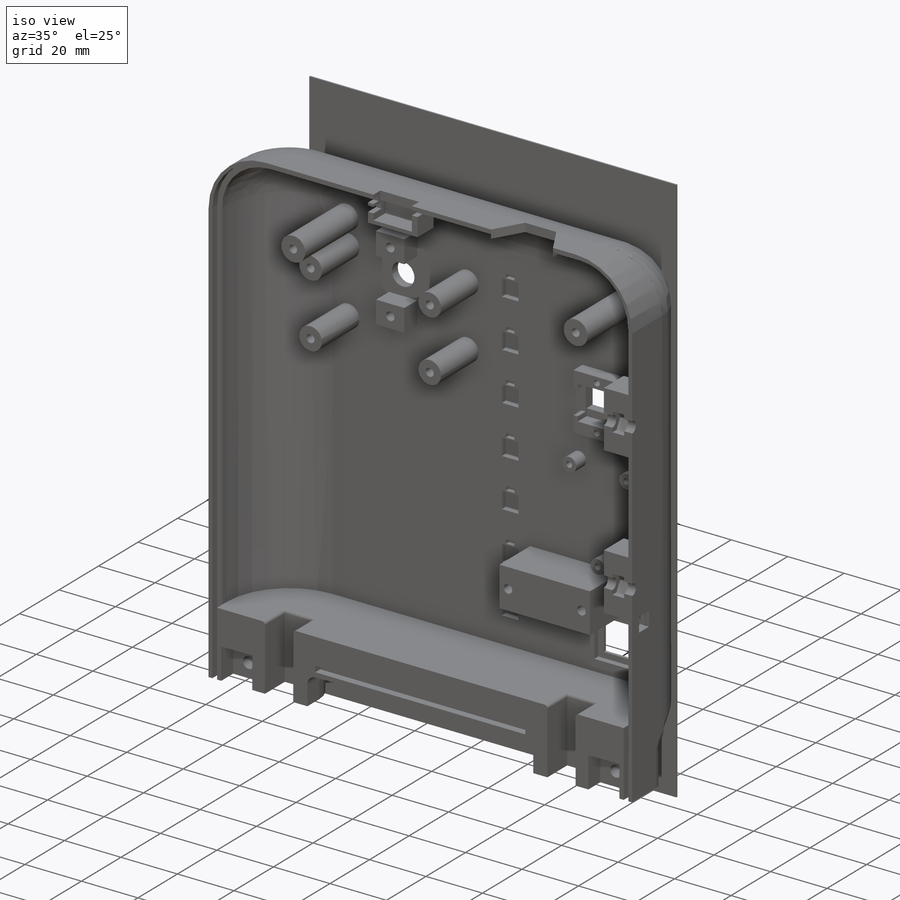
[diagram: iso view]
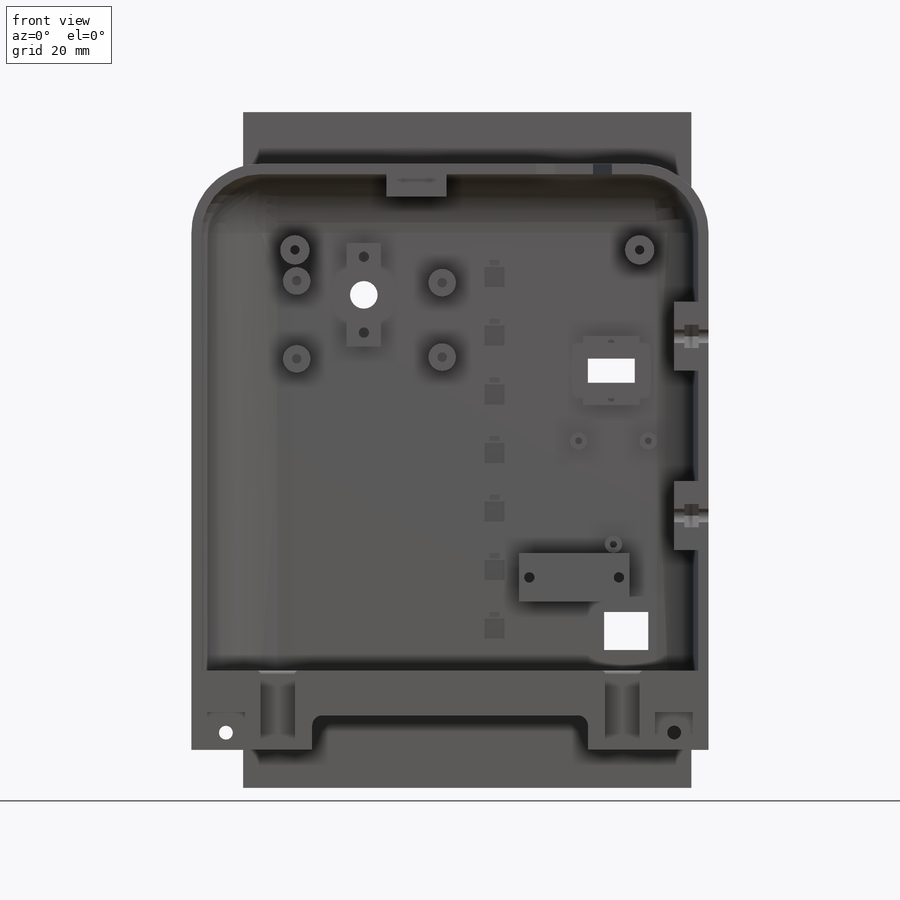
[diagram: front view]
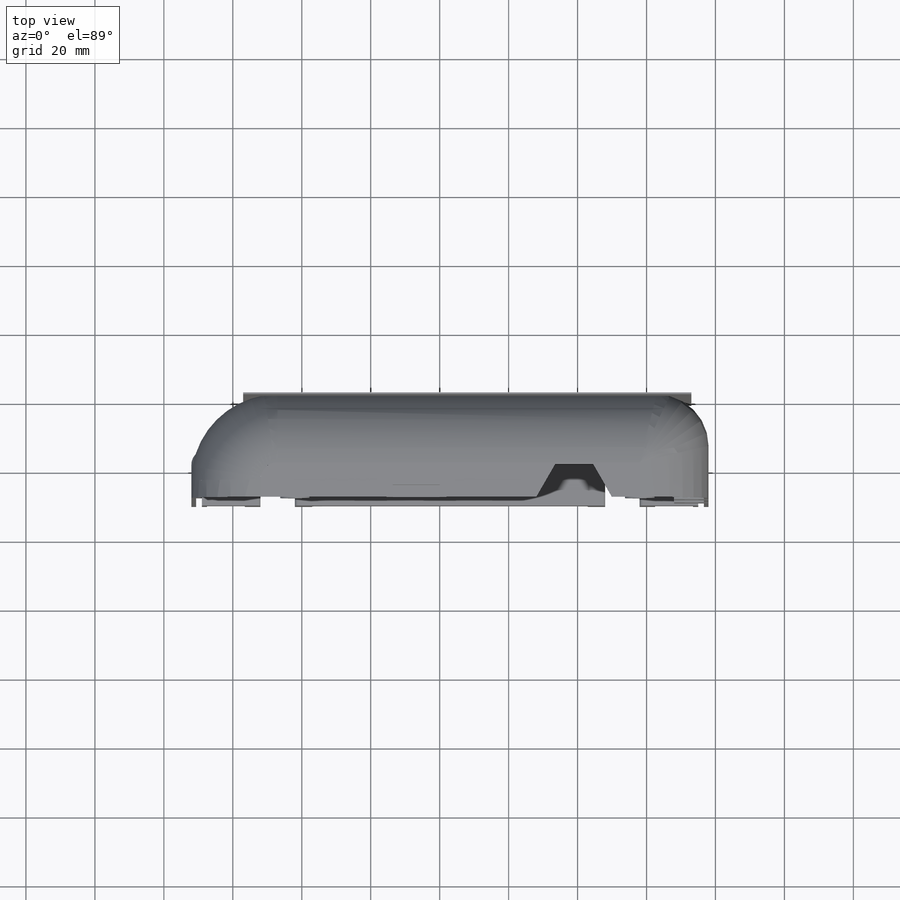
[diagram: top view]
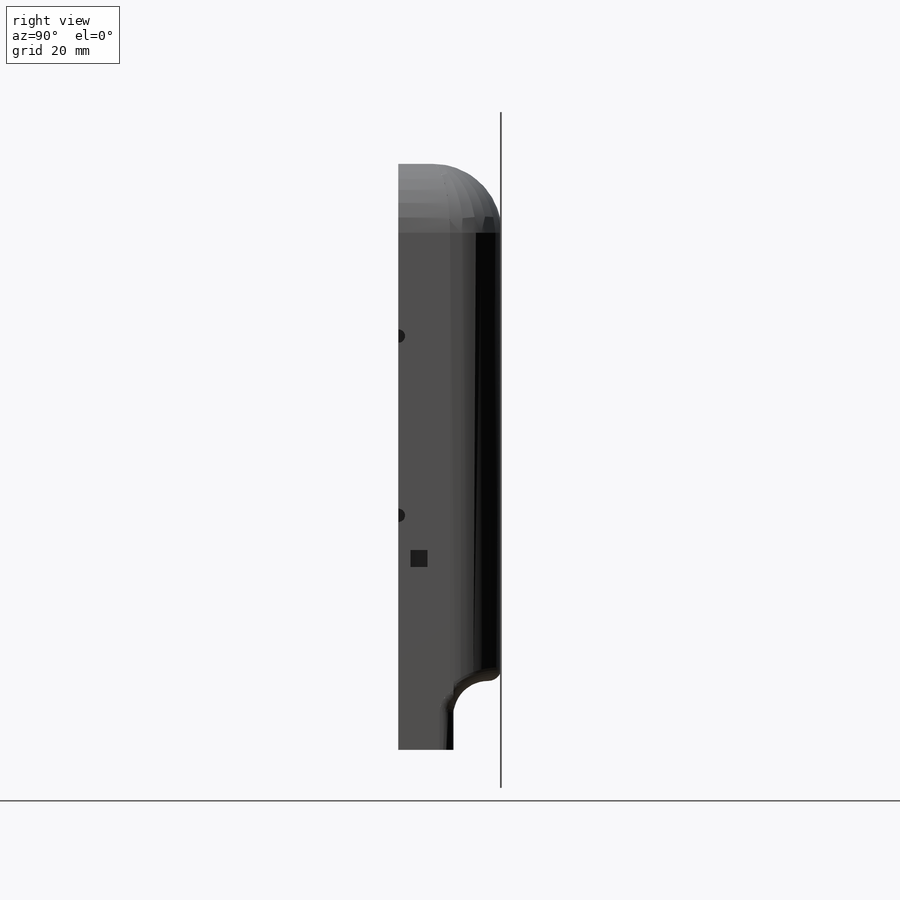
[diagram: right view]
SOLIDWORKS PART (.sldprt)
format: sldprt  version: not decoded by parser v0  size: 1,699,840 bytes
history: native  units: mm
features: sketch x55, cut_extrude x40, extrude x14, shell x13, plane x3, pattern_linear x3, material x1, fillet x1 (+9 scaffold rows collapsed)
feature tree (139):
  scaffold x9  (default folders/planes/origin — collapsed)
  material  "Material <nicht festgelegt>"
  plane  "Ebene vorne"
  plane  "Ebene oben"
  plane  "Ebene rechts"
  sketch  "Skizze1"  dims[D1=25.0mm D4=15.0mm D2=150.0mm D3=30.0mm D5=15.0mm]
  extrude  "Aufsatz-Linear austragen1"  Depth=150mm
  fillet  "Verrundung1"  Radius=20mm
  shell  "Wandung1"  Thickness=3mm
  sketch  "Skizze3"  dims[c1.D1=0.0mm c1.D2=10.0mm c1.D3=20.0mm c1.D4=62.0mm c1.D5=45.0mm c2.D4=20.0mm]
  extrude  "Aufsatz-Linear austragen2"  Depth=7mm
  sketch  "Skizze4"  dims[c1.D1=6.85mm c1.D2=4.0mm c2.D1=7.8mm c2.D3=6.575mm]
  cut_extrude  "Schnitt-Linear austragen1"  Depth=4.15mm
  sketch  "Skizze6"  dims[c1.D3=3.9mm c1.D1=0.0mm c1.D2=3.425mm c2.D3=~5.932274mm]
  cut_extrude  "Schnitt-Linear austragen2"  Depth=8mm
  sketch  "Skizze8"  dims[c1.D1=14.0mm c1.D2=14.0mm c2.D1=14.0mm c2.D2=32.0mm c2.D3=3.0mm c2.D4=20.0mm]
  extrude  "Aufsatz-Linear austragen3"  Depth=15.5mm
  sketch  "Skizze9"  dims[D3=3.0mm D1=7.0mm D2=3.0mm]
  cut_extrude  "Schnitt-Linear austragen4"  Depth=15mm
  sketch  "Skizze10"  dims[D3=3.0mm D1=7.0mm D2=3.0mm]
  cut_extrude  "Schnitt-Linear austragen5"  Depth=15mm
  sketch  "Skizze11"  dims[D1=20.0mm D2=16.5mm D3=5.0mm D4=30.0mm]
  extrude  "Aufsatz-Linear austragen4"  Depth=4.5mm
  sketch  "Skizze12"  dims[c1.D1=11.0mm c1.D2=11.0mm c2.D1=12.1mm c2.D2=13.6mm c2.D3=1.5mm c2.D4=3.95mm]
  cut_extrude  "Schnitt-Linear austragen6"  Depth=4.5mm
  sketch  "Skizze13"  dims[D1=8.8mm D2=5.6mm]
  cut_extrude  "Schnitt-Linear austragen7"  Depth=4mm
  sketch  "Skizze14"  dims[c1.D1=13.6mm c1.D2=0.0mm c1.D3=7.0mm c1.D4=2.55mm c1.D5=7.0mm c2.D3=7.0mm c2.D5=2.55mm]
  cut_extrude  "Schnitt-Linear austragen8"  [1 undecoded]
  sketch  "Skizze15"  dims[D3=2.0mm D1=1.975mm D2=8.25mm]
  cut_extrude  "Schnitt-Linear austragen9"  Depth=5mm
  sketch  "Skizze16"  dims[D3=2.0mm D1=1.975mm D2=8.25mm]
  cut_extrude  "Schnitt-Linear austragen10"  Depth=5mm
  sketch  "Skizze17"  dims[c1.D3=8.0mm c1.D1=50.0mm c1.D2=35.0mm c2.D1=50.0mm]
  cut_extrude  "Schnitt-Linear austragen11"  [1 undecoded]
  sketch  "Skizze18"  dims[c1.D1=8.0mm c1.D2=10.0mm c1.D3=45.0mm c1.D4=20.0mm c1.D5=8.0mm c1.D6=10.0mm c1.D7=42.0mm c1.D8=45.0mm c2.D3=45.0mm]
  extrude  "Aufsatz-Linear austragen5"  Depth=6.5mm
  sketch  "Skizze19"  dims[c1.D1=~2.619136mm c1.D3=~1.28437mm c1.D5=3.0mm c2.D1=4.0mm c2.D2=5.0mm c2.D3=5.0mm c2.D4=4.0mm]
  cut_extrude  "Schnitt-Linear austragen12"  Depth=7mm
  sketch  "Skizze20"  dims[D1=3.5mm D2=13.6mm]
  cut_extrude  "Schnitt-Linear austragen14"  Depth=3mm
  sketch  "Skizze21"  dims[D1=8.0mm D2=17.5mm D3=2.0mm]
  extrude  "Aufsatz-Linear austragen6"  Depth=6.5mm
  sketch  "Skizze22"  dims[D1=5.2mm D2=13.6mm]
  cut_extrude  "Schnitt-Linear austragen15"  Depth=6.05mm
  sketch  "Skizze23"  dims[D1=4.0mm D2=2.0mm]
  cut_extrude  "Schnitt-Linear austragen16"  Depth=4.05mm
  sketch  "Skizze27"  dims[D1=19.0mm D2=0.0mm]
  cut_extrude  "Schnitt-Linear austragen18"  Depth=3mm
  sketch  "Skizze28"  dims[D1=16.0mm D2=35.0mm]
  extrude  "Aufsatz-Linear austragen8"  Depth=20mm
  sketch  "Skizze29"  dims[D1=16.0mm D2=35.0mm]
  extrude  "Aufsatz-Linear austragen9"  Depth=20mm
  sketch  "Skizze30"
  extrude  "Aufsatz-Linear austragen10"  Depth=10mm
  shell  "Verrundung5"  Thickness=10mm
  shell  "Verrundung6"  Thickness=4mm
  shell  "Verrundung9"  Thickness=10mm
  shell  "Verrundung10"  Thickness=3mm
  shell  "Verrundung11"  Thickness=3mm
  shell  "Verrundung12"  Thickness=3mm
  shell  "Verrundung15"  Thickness=4mm
  shell  "Verrundung16"  Thickness=10mm
  shell  "Verrundung18"  Thickness=2mm
  shell  "Verrundung20"  Thickness=4mm
  sketch  "Skizze31"  dims[D1=6.0mm D2=4.5mm D3=11.0mm]
  cut_extrude  "Schnitt-Linear austragen19"  Depth=11mm
  sketch  "Skizze32"  dims[D1=6.0mm D2=11.0mm D3=4.5mm D4=0.0mm]
  cut_extrude  "Schnitt-Linear austragen20"  Depth=11mm
  sketch  "Skizze33"  dims[D1=20.0mm D2=10.0mm]
  cut_extrude  "Schnitt-Linear austragen21"  Depth=10mm
  sketch  "Skizze34"  dims[D1=20.0mm D2=10.0mm]
  cut_extrude  "Schnitt-Linear austragen22"  Depth=10mm
  shell  "Verrundung21"  Thickness=1mm
  shell  "Verrundung22"  Thickness=1mm
  sketch  "Skizze35"  dims[D3=4.0mm D1=5.0mm D2=5.5mm]
  cut_extrude  "Schnitt-Linear austragen23"  [1 undecoded]
  sketch  "Skizze36"  dims[c1.D3=4.0mm c1.D1=5.0mm c1.D2=~6.623427mm c2.D1=5.0mm c2.D2=5.5mm]
  cut_extrude  "Schnitt-Linear austragen24"  [1 undecoded]
  pattern_linear  "Lineares Muster1"  Count1=2 Count2=1 Spacing1=52mm Spacing2=10mm
  sketch  "Skizze37"  dims[D1=5.8mm D2=60.0mm D3=10.0mm]
  cut_extrude  "Schnitt-Linear austragen25"  Depth=2mm
  sketch  "Skizze38"  dims[D1=1.5mm D2=3.0mm D3=0.5mm D4=1.4mm]
  cut_extrude  "Schnitt-Linear austragen26"  Depth=1.5mm
  pattern_linear  "Lineares Muster2"  Count1=1 Count2=7 Spacing1=10mm Spacing2=17mm
  sketch  "Skizze40"  dims[D3=18.0mm D1=1.65mm D2=1.65mm]
  sketch  "Skizze41"  dims[D1=1.65mm D2=0.0mm D3=1.2mm]
  sketch  "Skizze42"  dims[D1=1.65mm]
  sketch  "Skizze43"  dims[D1=1.65mm D2=2.0mm]
  sketch  "Skizze44"  dims[D1=1.65mm]
  sketch  "Skizze45"  dims[D2=18.0mm D1=1.65mm]
  sketch  "Skizze46"  dims[D1=~145.44143mm]
  sketch  "Skizze47"  dims[D1=2.8mm D2=2.8mm D3=1.65mm D4=2.1mm]
  cut_extrude  "Schnitt-Linear austragen31"  Depth=2.5mm
  cut_extrude  "Schnitt-Linear austragen32"  Depth=2.5mm
  cut_extrude  "Schnitt-Linear austragen33"  Depth=2.5mm
  cut_extrude  "Schnitt-Linear austragen34"  Depth=2.5mm
  cut_extrude  "Schnitt-Linear austragen35"  Depth=2.5mm
  cut_extrude  "Schnitt-Linear austragen36"  Depth=2.5mm
  cut_extrude  "Schnitt-Linear austragen37"  Depth=2.5mm
  cut_extrude  "Schnitt-Linear austragen38"  Depth=2.5mm
  sketch  "Skizze48"  dims[c1.D1=6.8mm c2.D1=40.0deg]
  cut_extrude  "Schnitt-Linear austragen39"  Depth=3mm
  sketch  "Skizze49"  dims[c1.D1=6.8mm c2.D1=~146.745465deg]
  cut_extrude  "Schnitt-Linear austragen40"  Depth=3mm
  sketch  "Skizze50"  dims[D3=8.5mm D1=5.0mm D2=5.0mm]
  extrude  "Aufsatz-Linear austragen11"  Depth=27mm
  sketch  "Skizze51"  dims[D1=2.7mm]
  cut_extrude  "Schnitt-Linear austragen41"  Depth=20mm
  pattern_linear  "Lineares Muster3"  Count1=2 Count2=1 Spacing1=100mm Spacing2=10mm
  sketch  "Skizze54"  dims[D1=5.0mm D2=5.0mm D3=5.0mm D4=12.6mm D5=10.1mm D6=10.1mm D7=30.0mm D8=30.0mm D9=2.6mm]
  extrude  "Aufsatz-Linear austragen16"  Depth=5mm
  sketch  "Skizze55"  dims[D1=2.0mm D2=2.0mm D3=2.0mm]
  cut_extrude  "Schnitt-Linear austragen43"  Depth=7mm
  sketch  "Skizze56"  dims[c1.D1=8.0mm c1.D2=8.0mm c1.D3=8.0mm c1.D4=8.0mm c1.D5=14.0mm c1.D6=22.6mm c1.D7=42.2mm c1.D8=42.2mm c1.D9=0.5mm c1.D10=21.6mm c1.D11=5.525mm c2.D7=~42.862671deg]
  extrude  "Aufsatz-Linear austragen17"  Depth=19mm
  sketch  "Skizze57"  dims[D1=2.8mm D2=2.8mm D3=2.8mm D4=2.8mm]
  cut_extrude  "Schnitt-Linear austragen44"  Depth=12mm
  sketch  "Skizze58"  dims[c1.D3=35.0mm c1.D1=30.0mm c1.D2=40.0mm c2.D1=1.5mm c2.D5=3.0mm c2.D6=10.0mm c2.D7=5.0mm]
  sketch  "Skizze60"  dims[D1=31.0mm]
  cut_extrude  "Schnitt-Linear austragen46"  Depth=1.5mm
  sketch  "Skizze61"  dims[D1=12.8mm D2=11.0mm D3=3.0mm D4=2.5mm]
  cut_extrude  "Schnitt-Linear austragen47"  Depth=3mm
  sketch  "Skizze62"  dims[D1=15.0mm D2=16.8mm D3=2.0mm D4=2.0mm]
  cut_extrude  "Schnitt-Linear austragen48"  Depth=2mm
  sketch  "Skizze63"  dims[D1=3.5mm D2=10.0mm D3=5.0mm D4=5.0mm]
  cut_extrude  "Schnitt-Linear austragen49"  Depth=3mm
  sketch  "Skizze64"  dims[D1=0.0mm D2=35.0mm D3=35.0mm]
  extrude  "Aufsatz-Linear austragen18"  Depth=0.5mm
  sketch  "Skizze65"  dims[D1=0.0mm D2=10.0mm D3=10.0mm]
  extrude  "Aufsatz-Linear austragen19"  Depth=0.5mm
decode coverage: 121 of 126 modeling features carry decoded parameters
note: ~ marks probable driven/reference dimensions
note: 4 parameter values undecoded
summary: no parameter record found for 4 features
note: suppression state not decoded; provenance and decode notes live in map.json
